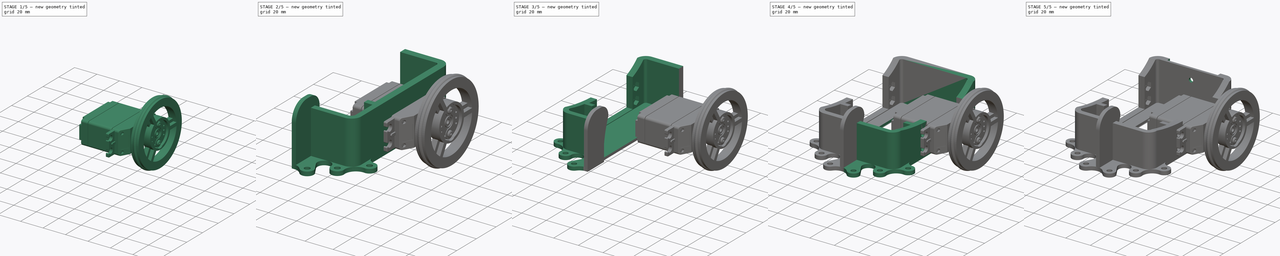
[diagram: build sequence overview — one tinted view per stage of 5, left to right]
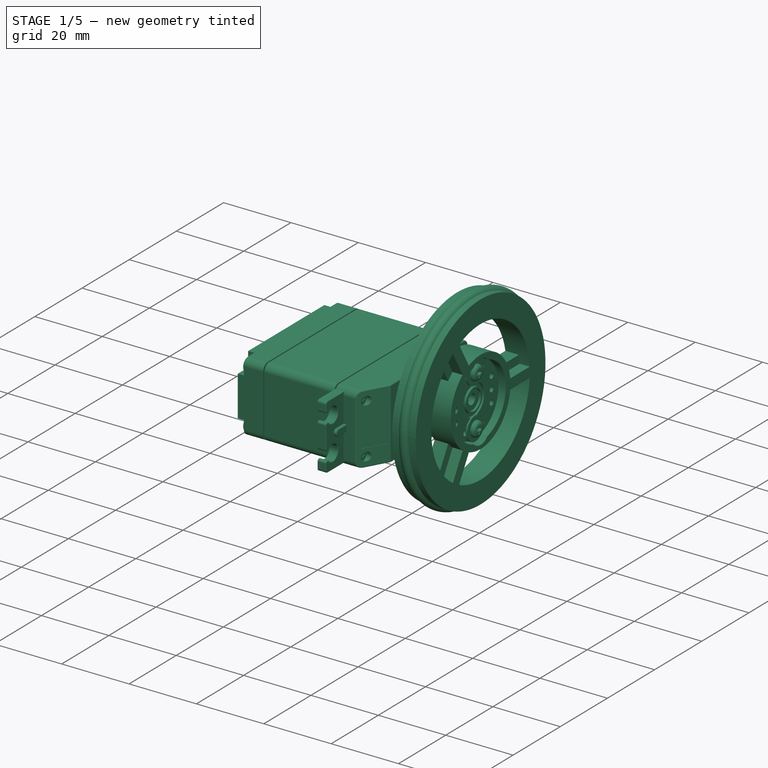
[diagram: stage 1 of 5 — iso view after this stage's code; geometry added in this stage tinted green]
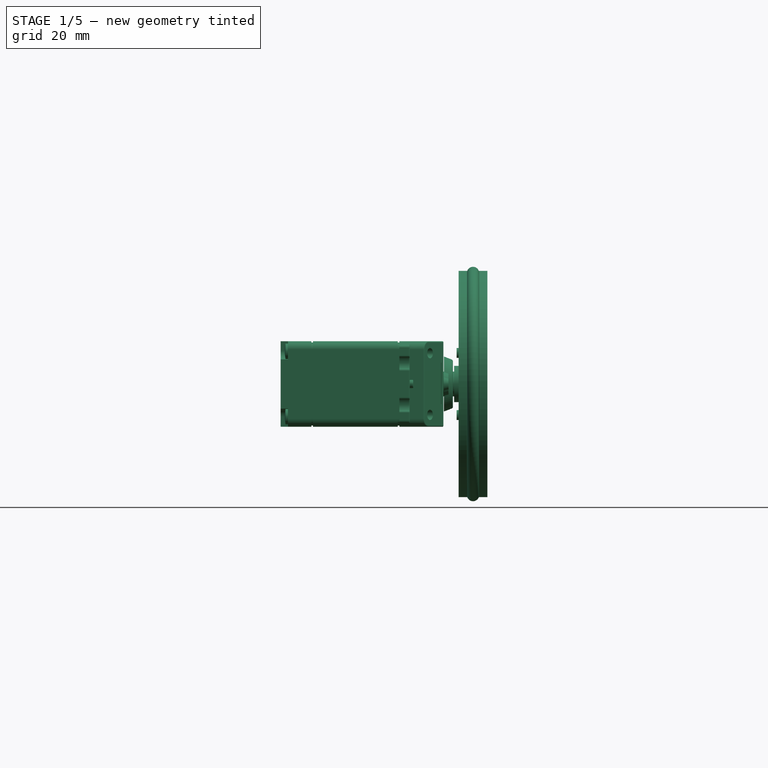
[diagram: stage 1 of 5 — front view after this stage's code; geometry added in this stage tinted green]
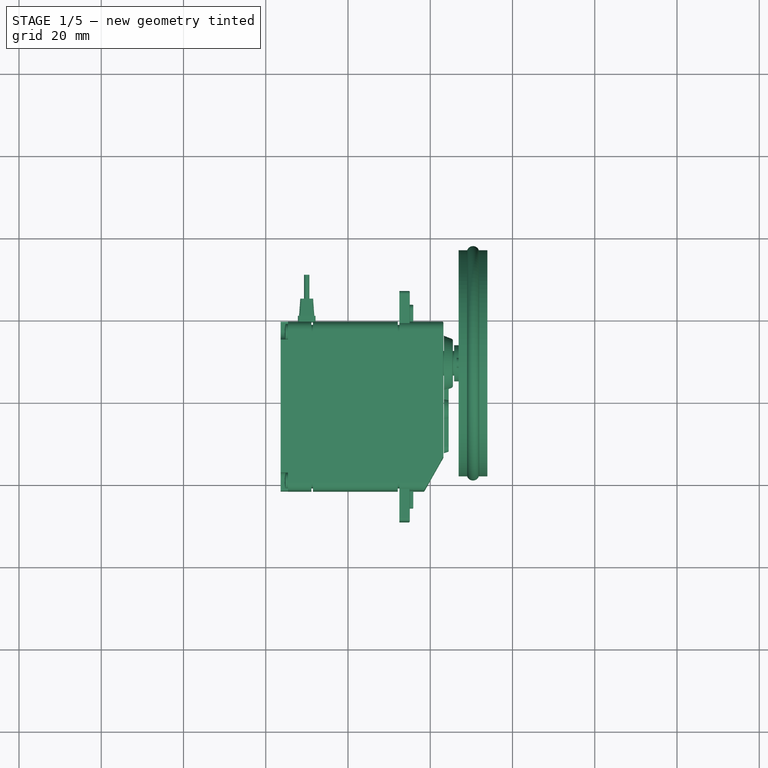
[diagram: stage 1 of 5 — top view after this stage's code; geometry added in this stage tinted green]
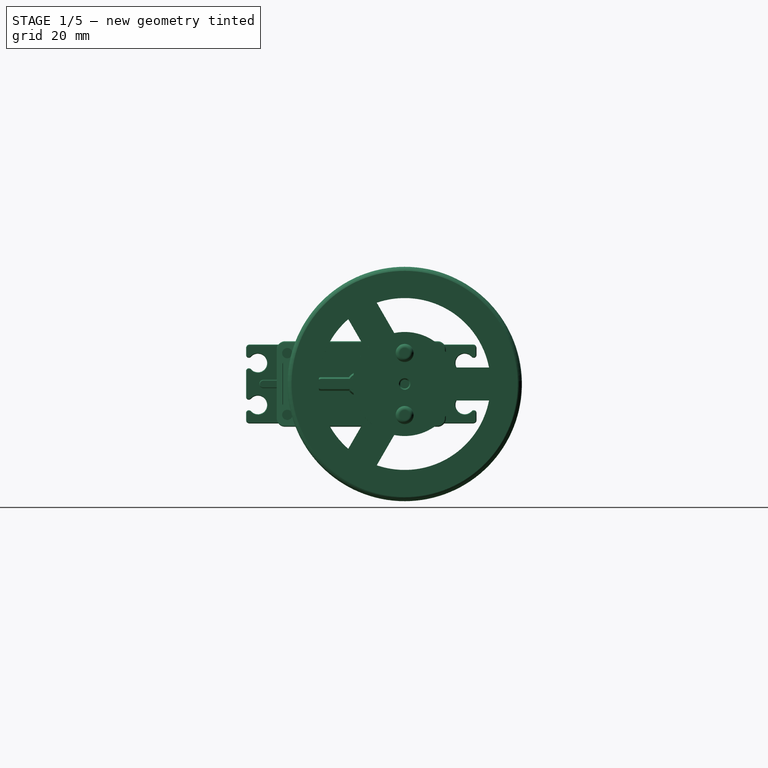
[diagram: stage 1 of 5 — right view after this stage's code; geometry added in this stage tinted green]
FCSTD DOCUMENT  (FreeCAD 0.15R4544 (Git))
Label: test
License: CC-BY 3.0
LicenseURL: http://creativecommons.org/licenses/by/3.0/
objects: Sketcher::SketchObject×13, PartDesign::Pocket×10, Part::Feature×5, PartDesign::Pad×3, Part::Compound×3, Part::MultiFuse×2, Part::Fillet×1, Part::Mirroring×1, Part::Torus×1
note: 52 computed .brp shape members not serialized (recipe doc carries the construction recipe); baked Part::Feature solids carry a one-line shape summary decoded from their .brp

FEATURE [Part::Feature] Chamfer  label="screw1"
  Placement = pos=(7.55,0,1.5) rot=(0,0,1;0rad)
  shape: bbox 7 x 7 x 7.14 mm, 33 faces (baked)
FEATURE [Part::Feature] Pocket009002  label="small-rounded-horn"
  Placement = pos=(0,0,-0.5) rot=(0,0,1;0rad)
  shape: bbox 21 x 21 x 6.2 mm, 28 faces (baked)
FEATURE [Part::Torus] Torus  label="o-ring"
  Angle1 = -180
  Angle2 = 180
  Angle3 = 360
  Radius1 = 27
  Radius2 = 1.5
FEATURE [Part::Feature] Mirrored  label="Renacuajo-original-wheel-screws-final"
  Placement = pos=(0,0,0) rot=(1,0,0;1.5708rad)
  shape: bbox 55 x 55 x 7 mm, 44 faces (baked)
FEATURE [Part::Feature] Chamfer001  label="screw2"
  Placement = pos=(-7.55,0,1.5) rot=(0,0,1;0rad)
  shape: bbox 7 x 7 x 7.14 mm, 33 faces (baked)
FEATURE [Part::Compound] Compound  label="Right-wheel"
  Links = -> [Mirrored,Torus,Chamfer001,Pocket009002,Chamfer]
  Placement = pos=(50.4,29.2,-12.4) rot=(0,1,0;1.5708rad)
FEATURE [Part::Compound] Compound001  label="Servo-SM-S4303R-right"
  Placement = pos=(3.6,18.65,-12.4) rot=(0.57735,0.57735,0.57735;2.0944rad)
FEATURE [Part::Compound] Compound002  label="Wheel_plus_servo"
  Links = -> [Compound,Compound001]
  Placement = pos=(0,0,24.8) rot=(0,0,1;0rad)
FEATURE [Part::Feature] Pocket009003  label="renacuajo-chassis-final"
  shape: bbox 83.6 x 117.6 x 41.4 mm, 171 faces (baked)
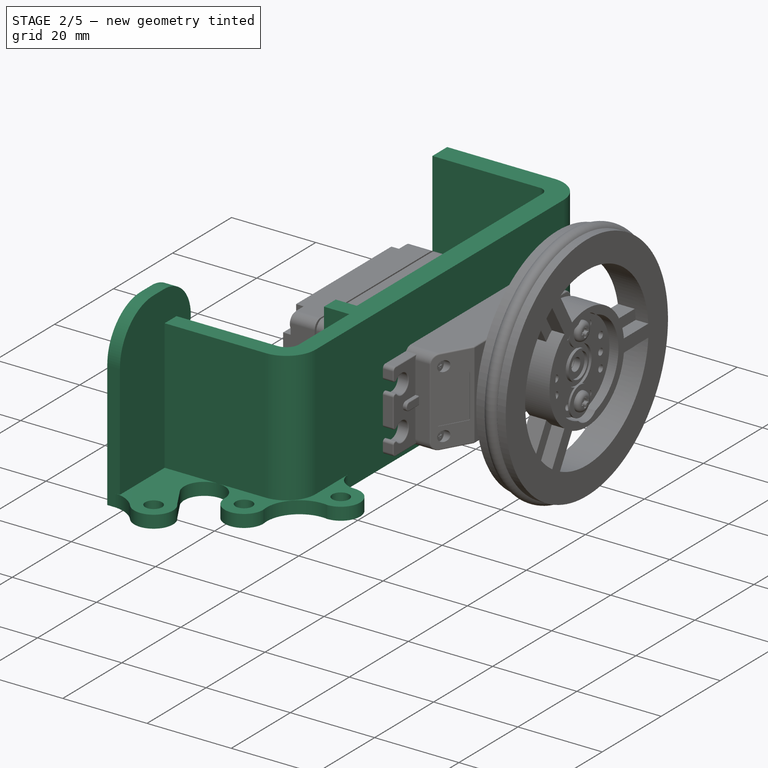
[diagram: stage 2 of 5 — iso view after this stage's code; geometry added in this stage tinted green]
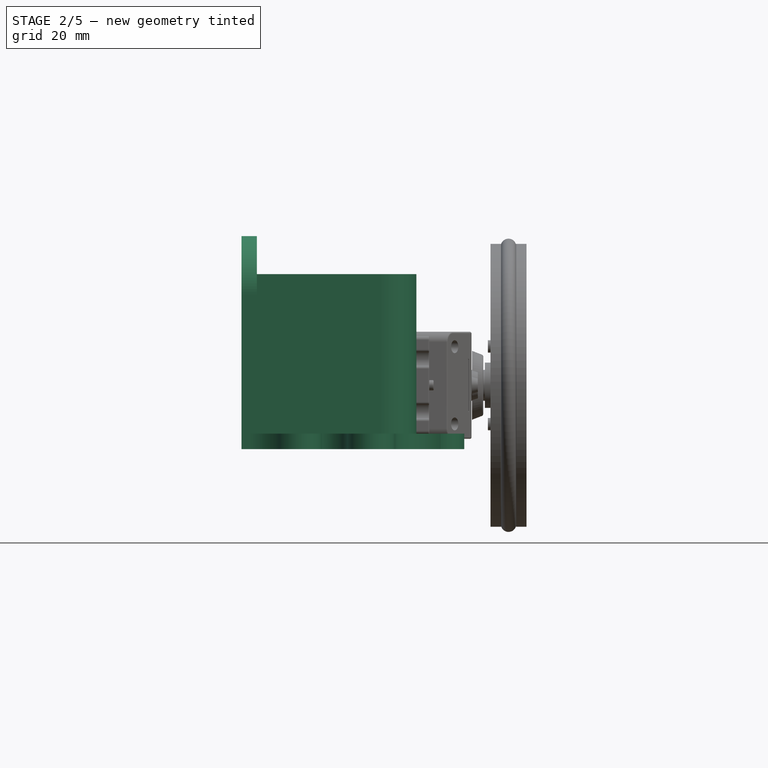
[diagram: stage 2 of 5 — front view after this stage's code; geometry added in this stage tinted green]
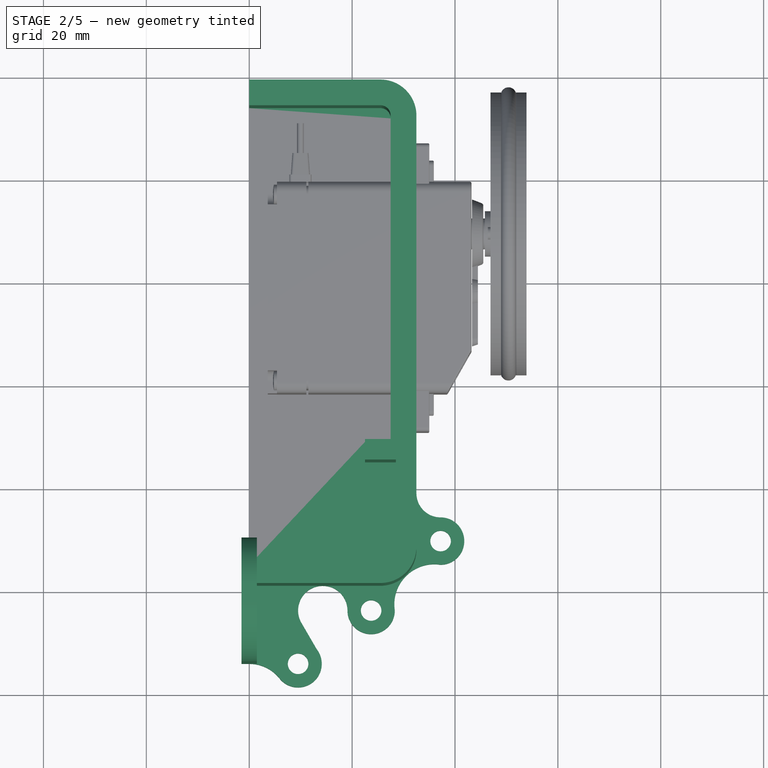
[diagram: stage 2 of 5 — top view after this stage's code; geometry added in this stage tinted green]
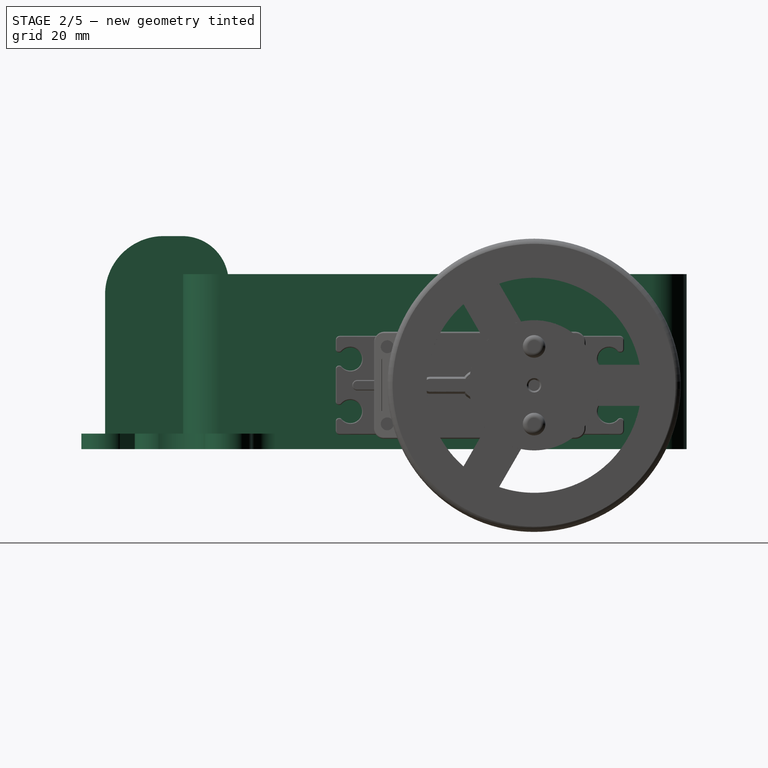
[diagram: stage 2 of 5 — right view after this stage's code; geometry added in this stage tinted green]
FEATURE [Sketcher::SketchObject] Sketch  label="half-base-sketch"
  sketch-geometry (24):
    g0: Circle CenterX=9.5 CenterY=-54.2 CenterZ=0 NormalX=0 NormalY=0 NormalZ=1 Radius=2
    g1: ArcOfCircle CenterX=9.5 CenterY=-54.2 CenterZ=0 NormalX=0 NormalY=0 NormalZ=1 Radius=4.6 StartAngle=3.81052 EndAngle=6.95211
    g2: LineSegment [constr] StartX=0 StartY=-61.7098 StartZ=0 EndX=13.1087 EndY=-51.3473 EndZ=0
    g3: ArcOfCircle CenterX=0 CenterY=-61.7098 CenterZ=0 NormalX=0 NormalY=0 NormalZ=1 Radius=7.50978 StartAngle=0.668923 EndAngle=1.5708
    g4: LineSegment [constr] StartX=0 StartY=-54.2 StartZ=0 EndX=9.5 EndY=-54.2 EndZ=0
    g5: LineSegment [constr] StartX=0 StartY=-43.84 StartZ=0 EndX=23.7 EndY=-43.84 EndZ=0
    g6: Circle CenterX=23.7 CenterY=-43.84 CenterZ=0 NormalX=0 NormalY=0 NormalZ=1 Radius=2
    g7: ArcOfCircle CenterX=23.7 CenterY=-43.84 CenterZ=0 NormalX=0 NormalY=0 NormalZ=1 Radius=4.6 StartAngle=3.14159 EndAngle=6.28319
    g8: ArcOfCircle CenterX=14.3 CenterY=-43.84 CenterZ=0 NormalX=0 NormalY=0 NormalZ=1 Radius=4.8 StartAngle=0 EndAngle=3.66766
    g9: LineSegment StartX=10.149 StartY=-46.2503 StartZ=0 EndX=13.1087 EndY=-51.3473 EndZ=0
    g10: Circle CenterX=37.2 CenterY=-30.34 CenterZ=0 NormalX=0 NormalY=0 NormalZ=1 Radius=2
    g11: LineSegment [constr] StartX=23.7 StartY=-43.84 StartZ=0 EndX=37.2 EndY=-43.84 EndZ=0
    g12: LineSegment [constr] StartX=37.2 StartY=-43.84 StartZ=0 EndX=37.2 EndY=-30.34 EndZ=0
    g13: LineSegment [constr] StartX=30.4896 StartY=-37.1296 StartZ=0 EndX=37.2 EndY=-43.84 EndZ=0
    g14: ArcOfCircle CenterX=36 CenterY=-42.64 CenterZ=0 NormalX=0 NormalY=0 NormalZ=1 Radius=7.79295 StartAngle=1.4162 EndAngle=3.29619
    g15: ArcOfCircle CenterX=37.2 CenterY=-30.34 CenterZ=0 NormalX=0 NormalY=0 NormalZ=1 Radius=4.6 StartAngle=4.71239 EndAngle=7.85398
    g16: ArcOfCircle CenterX=37.2 CenterY=-21.04 CenterZ=0 NormalX=0 NormalY=0 NormalZ=1 Radius=4.7 StartAngle=3.14159 EndAngle=4.71239
    g17: LineSegment [constr] StartX=32.5 StartY=-21.04 StartZ=0 EndX=37.2 EndY=-21.04 EndZ=0
    g18: ArcOfCircle CenterX=25.5 CenterY=51.843 CenterZ=0 NormalX=0 NormalY=0 NormalZ=1 Radius=7 StartAngle=0 EndAngle=1.5708
    g19: LineSegment [constr] StartX=25.5 StartY=51.843 StartZ=0 EndX=32.5 EndY=51.843 EndZ=0
    g20: LineSegment [constr] StartX=25.5 StartY=51.843 StartZ=0 EndX=25.5 EndY=58.843 EndZ=0
    g21: LineSegment StartX=32.5 StartY=51.843 StartZ=0 EndX=32.5 EndY=-21.04 EndZ=0
    g22: LineSegment StartX=0 StartY=58.843 StartZ=0 EndX=25.5 EndY=58.843 EndZ=0
    g23: LineSegment StartX=0 StartY=58.843 StartZ=0 EndX=0 EndY=-54.2 EndZ=0
  constraints (74):
    c: Radius(g0) = 2
    c: DistanceY(g-1,g0) = -54.2
    c: DistanceX(g-1,g0) = 9.5
    c: Coincident(g1,g0)
    c: Coincident(g2,g1)
    c: PointOnObject(g0,g2)
    c: Radius(g1) = 4.6
    c: PointOnObject(g2,g-2)
    c: PointOnObject(g1,g2)
    c: Coincident(g3,g1)
    c: Coincident(g3,g2)
    c: Coincident(g4,g0)
    c: Horizontal(g4)
    c: PointOnObject(g4,g-2)
    c: Coincident(g3,g4)
    c: Horizontal(g5)
    c: PointOnObject(g5,g-2)
    c: Radius(g6) = 2
    c: PointOnObject(g6,g5)
    c: Coincident(g5,g6)
    c: DistanceY(g-1,g5) = -43.84
    c: DistanceX(g5,g5) = 23.7
    c: Radius(g7) = 4.6
    c: PointOnObject(g7,g5)
    c: PointOnObject(g7,g5)
    c: Radius(g8) = 4.8
    c: PointOnObject(g8,g5)
    c: Coincident(g8,g7)
    c: Coincident(g9,g1)
    c: Coincident(g9,g8)
    c: Coincident(g7,g5)
    c: Tangent(g9,g8)
    c: Radius(g10) = 2
    c: DistanceX(g5,g10) = 13.5
    c: DistanceY(g5,g10) = 13.5
    c: Coincident(g12,g11)
    c: Horizontal(g11)
    c: Vertical(g12)
    c: Coincident(g11,g5)
    c: Coincident(g12,g10)
    c: Coincident(g13,g11)
    c: Angle(g13,g11) = 0.785398
    c: Coincident(g14,g7)
    c: PointOnObject(g14,g13)
    c: PointOnObject(g14,g12)
    c: DistanceY(g11,g14) = 1.2
    c: PointOnObject(g13,g14)
    c: Coincident(g15,g14)
    c: Coincident(g15,g10)
    c: PointOnObject(g15,g12)
    c: Coincident(g16,g15)
    c: PointOnObject(g16,g12)
    c: Coincident(g17,g16)
    c: Horizontal(g17)
    c: Coincident(g17,g16)
    c: DistanceX(g17) = 4.7
    c: DistanceY(g-1,g18) = 51.843
    c: DistanceX(g-1,g18) = 25.5
    c: Radius(g18) = 7
    c: Horizontal(g19)
    c: Coincident(g19,g18)
    c: Coincident(g19,g18)
    c: Vertical(g20)
    c: Coincident(g20,g18)
    c: Coincident(g20,g18)
    c: Vertical(g21)
    c: Coincident(g21,g16)
    c: Coincident(g21,g18)
    c: Horizontal(g22)
    c: Coincident(g22,g18)
    c: PointOnObject(g22,g-2)
    c: Vertical(g23)
    c: Coincident(g23,g22)
    c: Coincident(g23,g3)
FEATURE [PartDesign::Pad] Pad  label="half-base"
  Length = 3
  Length2 = 100
  Sketch = -> Sketch
  Type = 0
FEATURE [Sketcher::SketchObject] Sketch001  label="body1-sketch"
  ExternalGeometry = -> [Pad]
  Placement = pos=(0,0,3) rot=(0,0,1;0rad)
  Support = -> Pad [Face17]
  sketch-geometry (8):
    g0: LineSegment StartX=0 StartY=58.843 StartZ=0 EndX=25.5 EndY=58.843 EndZ=0
    g1: LineSegment [constr] StartX=25.5 StartY=58.843 StartZ=0 EndX=25.5 EndY=51.843 EndZ=0
    g2: LineSegment [constr] StartX=25.5 StartY=51.843 StartZ=0 EndX=32.5 EndY=51.843 EndZ=0
    g3: ArcOfCircle CenterX=25.5 CenterY=51.843 CenterZ=0 NormalX=0 NormalY=0 NormalZ=1 Radius=7 StartAngle=0 EndAngle=1.5708
    g4: LineSegment StartX=32.5 StartY=51.843 StartZ=0 EndX=32.5 EndY=-32.04 EndZ=0
    g5: LineSegment StartX=0 StartY=-39.04 StartZ=0 EndX=25.5 EndY=-39.04 EndZ=0
    g6: ArcOfCircle CenterX=25.5 CenterY=-32.04 CenterZ=0 NormalX=0 NormalY=0 NormalZ=1 Radius=7 StartAngle=4.71239 EndAngle=6.28319
    g7: LineSegment StartX=0 StartY=58.843 StartZ=0 EndX=0 EndY=-39.04 EndZ=0
  constraints (22):
    c: Horizontal(g0)
    c: Coincident(g0,g-3)
    c: Coincident(g2,g1)
    c: Vertical(g1)
    c: Horizontal(g2)
    c: Coincident(g3,g1)
    c: Coincident(g3,g2)
    c: Coincident(g1,g3)
    c: Coincident(g1,g-3)
    c: Coincident(g2,g-4)
    c: Coincident(g0,g1)
    c: Vertical(g4)
    c: Horizontal(g5)
    c: PointOnObject(g5,g-2)
    c: Tangent(g-5,g5)
    c: Coincident(g4,g2)
    c: Tangent(g4,g6)
    c: Tangent(g5,g6)
    c: Vertical(g7)
    c: Coincident(g7,g5)
    c: Coincident(g7,g0)
    c: Radius(g6) = 7
FEATURE [PartDesign::Pad] Pad001  label="body1"
  Length = 31
  Length2 = 100
  Sketch = -> Sketch001
  Type = 0
FEATURE [Sketcher::SketchObject] Sketch003  label="body2-sketch"
  ExternalGeometry = -> [Pad001]
  Placement = pos=(0,0,34) rot=(0,0,1;0rad)
  Support = -> Pad001 [Face16]
  sketch-geometry (10):
    g0: LineSegment StartX=0 StartY=53.843 StartZ=0 EndX=25.5 EndY=53.843 EndZ=0
    g1: LineSegment StartX=27.5 StartY=51.843 StartZ=0 EndX=27.5 EndY=-11.04 EndZ=0
    g2: LineSegment StartX=0 StartY=-35.04 StartZ=0 EndX=25.5 EndY=-35.04 EndZ=0
    g3: LineSegment StartX=27.5 StartY=-11.04 StartZ=0 EndX=22.5 EndY=-11.04 EndZ=0
    g4: LineSegment StartX=22.5 StartY=-11.04 StartZ=0 EndX=22.5 EndY=-15.04 EndZ=0
    g5: LineSegment StartX=22.5 StartY=-15.04 StartZ=0 EndX=28.5 EndY=-15.04 EndZ=0
    g6: LineSegment StartX=28.5 StartY=-15.04 StartZ=0 EndX=28.5 EndY=-32.04 EndZ=0
    g7: LineSegment StartX=0 StartY=53.843 StartZ=0 EndX=0 EndY=-35.04 EndZ=0
    g8: ArcOfCircle CenterX=25.5 CenterY=-32.04 CenterZ=0 NormalX=0 NormalY=0 NormalZ=1 Radius=3 StartAngle=4.71239 EndAngle=6.28319
    g9: ArcOfCircle CenterX=25.5 CenterY=51.843 CenterZ=0 NormalX=0 NormalY=0 NormalZ=1 Radius=2 StartAngle=0 EndAngle=1.5708
  constraints (29):
    c: Horizontal(g0)
    c: PointOnObject(g0,g-2)
    c: DistanceY(g0,g-3) = 5
    c: Vertical(g1)
    c: Horizontal(g2)
    c: PointOnObject(g2,g-2)
    c: DistanceY(g-5,g2) = 4
    c: Coincident(g3,g4)
    c: Coincident(g4,g5)
    c: Coincident(g5,g6)
    c: Horizontal(g3)
    c: Horizontal(g5)
    c: Vertical(g4)
    c: Vertical(g6)
    c: Coincident(g3,g1)
    c: Vertical(g7)
    c: Coincident(g0,g7)
    c: Coincident(g7,g2)
    c: DistanceY(g4) = -4
    c: DistanceX(g3) = -5
    c: Tangent(g2,g8)
    c: Tangent(g6,g8)
    c: Radius(g8) = 3
    c: DistanceX(g6,g-4) = 4
    c: DistanceY(g2,g5) = 20
    c: Tangent(g0,g9)
    c: Tangent(g1,g9)
    c: Radius(g9) = 2
    c: DistanceX(g1,g-4) = 5
FEATURE [PartDesign::Pocket] Pocket  label="body2"
  Length = 32
  Sketch = -> Sketch003
  Type = 0
FEATURE [Sketcher::SketchObject] Sketch007  label="caster-wheel-sketch"
  Placement = pos=(0,0,0) rot=(0.57735,0.57735,0.57735;2.0944rad)
  sketch-geometry (9):
    g0: LineSegment StartX=-54.2 StartY=0 StartZ=0 EndX=-54.2 EndY=30 EndZ=0
    g1: LineSegment StartX=-42.8 StartY=41.4 StartZ=0 EndX=-39.2 EndY=41.4 EndZ=0
    g2: ArcOfCircle CenterX=-42.8 CenterY=30 CenterZ=0 NormalX=0 NormalY=0 NormalZ=1 Radius=11.4 StartAngle=1.5708 EndAngle=3.14159
    g3: LineSegment [constr] StartX=-54.2 StartY=30 StartZ=0 EndX=-42.8 EndY=30 EndZ=0
    g4: LineSegment [constr] StartX=-30.2 StartY=31.7308 StartZ=0 EndX=-35.2 EndY=13 EndZ=0
    g5: LineSegment StartX=-54.2 StartY=0 StartZ=0 EndX=-35.2 EndY=0 EndZ=0
    g6: LineSegment StartX=-35.2 StartY=0 StartZ=0 EndX=-35.2 EndY=13 EndZ=0
    g7: ArcOfCircle CenterX=36.2309 CenterY=3.96494 CenterZ=0 NormalX=0 NormalY=0 NormalZ=1 Radius=72 StartAngle=2.7457 EndAngle=3.01577
    g8: ArcOfCircle CenterX=-39.2 CenterY=32.3769 CenterZ=0 NormalX=0 NormalY=0 NormalZ=1 Radius=9.02313 StartAngle=6.21152 EndAngle=7.85398
  constraints (27):
    c: Vertical(g0)
    c: PointOnObject(g0,g-1)
    c: DistanceY(g0) = 30
    c: Horizontal(g1)
    c: DistanceX(g1) = 3.6
    c: DistanceY(g-1,g1) = 41.4
    c: Coincident(g2,g1)
    c: Coincident(g2,g0)
    c: Coincident(g3,g0)
    c: Coincident(g3,g2)
    c: Horizontal(g3)
    c: Tangent(g1,g2)
    c: DistanceX(g-1,g0) = -54.2
    c: Horizontal(g5)
    c: Coincident(g5,g0)
    c: DistanceX(g0,g5) = 19
    c: Vertical(g6)
    c: Coincident(g6,g5)
    c: Coincident(g6,g4)
    c: DistanceY(g6) = 13
    c: DistanceX(g0,g4) = 24
    c: Coincident(g7,g4)
    c: Coincident(g4,g7)
    c: Radius(g7) = 72
    c: Coincident(g8,g1)
    c: Coincident(g8,g4)
    c: Tangent(g8,g1)
FEATURE [PartDesign::Pad] Pad002  label="caster-wheel"
  Length = 3
  Length2 = 100
  Midplane = true
  Placement = pos=(0,0,0) rot=(0.57735,0.57735,0.57735;2.0944rad)
  Sketch = -> Sketch007
  Type = 0
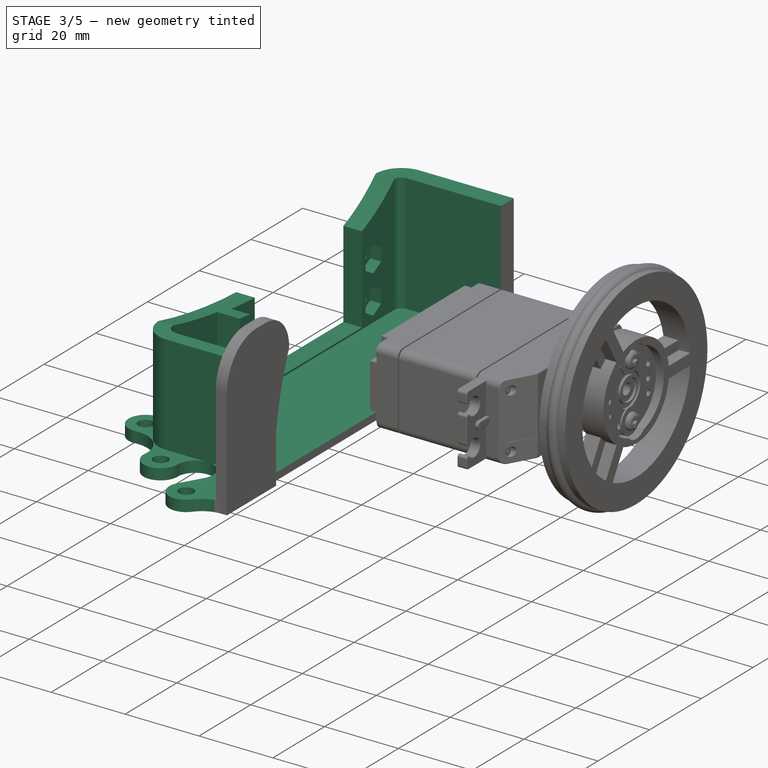
[diagram: stage 3 of 5 — iso view after this stage's code; geometry added in this stage tinted green]
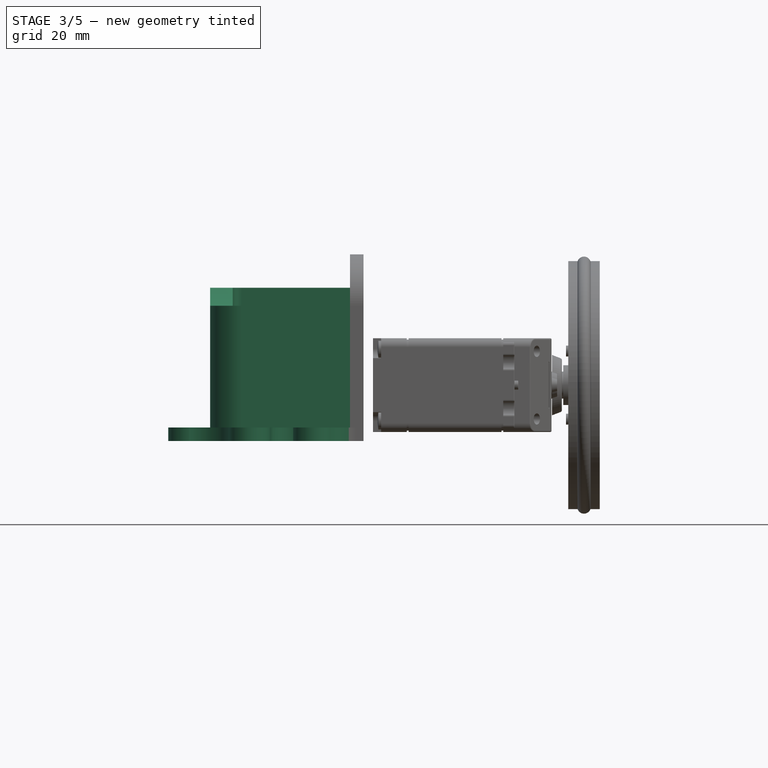
[diagram: stage 3 of 5 — front view after this stage's code; geometry added in this stage tinted green]
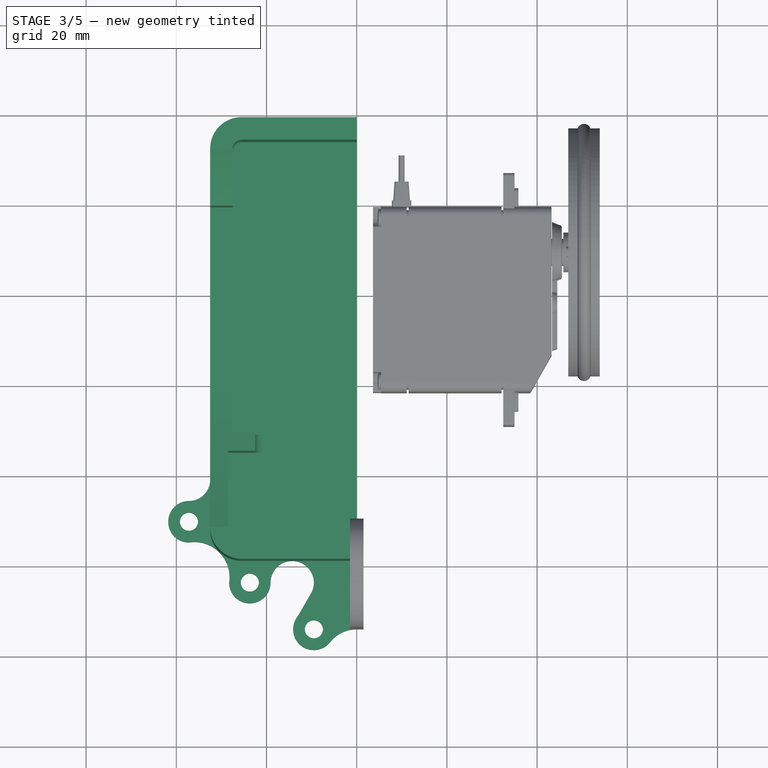
[diagram: stage 3 of 5 — top view after this stage's code; geometry added in this stage tinted green]
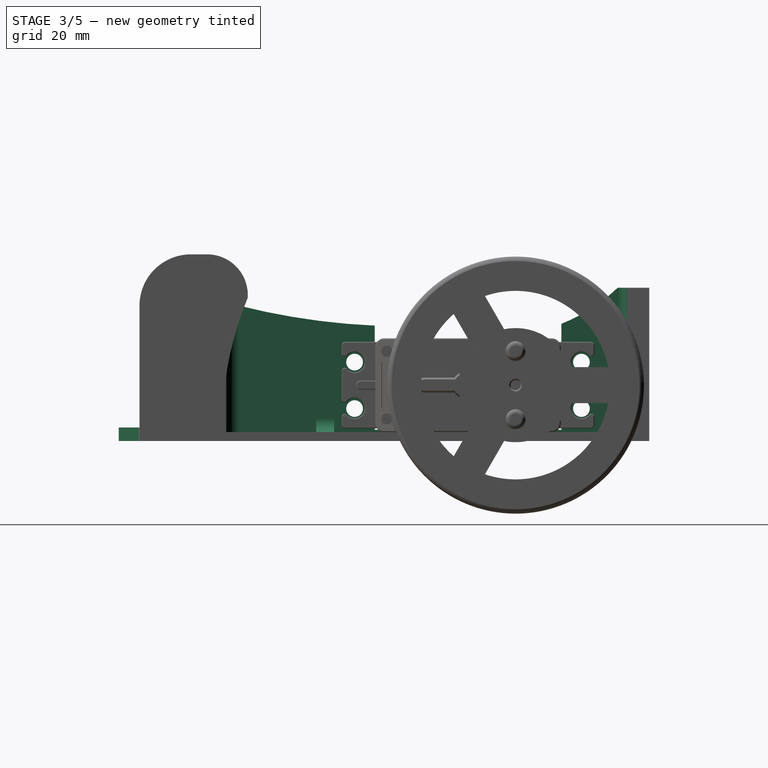
[diagram: stage 3 of 5 — right view after this stage's code; geometry added in this stage tinted green]
FEATURE [Sketcher::SketchObject] Sketch004  label="body3-sketch"
  ExternalGeometry = -> [Pocket]
  Placement = pos=(32.5,0,0) rot=(0.57735,0.57735,0.57735;2.0944rad)
  Support = -> Pocket [Face11]
  sketch-geometry (10):
    g0: LineSegment StartX=-39.04 StartY=30 StartZ=0 EndX=-32.04 EndY=30 EndZ=0
    g1: LineSegment StartX=-2.04 StartY=25.6 StartZ=0 EndX=-2.04 EndY=2.5 EndZ=0
    g2: LineSegment StartX=-2.04 StartY=2.5 StartZ=0 EndX=39.36 EndY=2.5 EndZ=0
    g3: LineSegment StartX=39.36 StartY=2.5 StartZ=0 EndX=39.36 EndY=26 EndZ=0
    g4: LineSegment [constr] StartX=51.843 StartY=34 StartZ=0 EndX=51.843 EndY=2 EndZ=0
    g5: ArcOfCircle CenterX=24.3925 CenterY=63.0941 CenterZ=0 NormalX=0 NormalY=0 NormalZ=1 Radius=40 StartAngle=5.09591 EndAngle=5.46873
    g6: ArcOfCircle CenterX=4.61567 CenterY=175.452 CenterZ=0 NormalX=0 NormalY=0 NormalZ=1 Radius=150 StartAngle=4.46552 EndAngle=4.668
    g7: LineSegment StartX=-39.04 StartY=35 StartZ=0 EndX=51.843 EndY=35 EndZ=0
    g8: LineSegment StartX=51.843 StartY=35 StartZ=0 EndX=51.843 EndY=34 EndZ=0
    g9: LineSegment StartX=-39.04 StartY=30 StartZ=0 EndX=-39.04 EndY=35 EndZ=0
  constraints (31):
    c: Horizontal(g0)
    c: PointOnObject(g0,g-3)
    c: DistanceY(g0,g-3) = -27
    c: DistanceX(g0) = 7
    c: Vertical(g1)
    c: DistanceX(g-4,g1) = 9
    c: DistanceY(g1,g-5) = -23.6
    c: DistanceY(g1,g-5) = -0.5
    c: Horizontal(g2)
    c: Coincident(g2,g1)
    c: DistanceX(g2) = 41.4
    c: Vertical(g3)
    c: Coincident(g3,g2)
    c: DistanceY(g3,g-5) = -24
    c: Vertical(g4)
    c: Coincident(g4,g-5)
    c: DistanceY(g4) = -32
    c: Coincident(g5,g3)
    c: Coincident(g5,g4)
    c: Radius(g5) = 40
    c: Coincident(g6,g0)
    c: Coincident(g6,g1)
    c: Radius(g6) = 150
    c: Vertical(g8)
    c: Coincident(g8,g4)
    c: DistanceY(g8) = -1
    c: Coincident(g7,g8)
    c: Horizontal(g7)
    c: Vertical(g9)
    c: Coincident(g0,g9)
    c: Coincident(g9,g7)
FEATURE [PartDesign::Pocket] Pocket001  label="body3"
  Length = 5
  Sketch = -> Sketch004
  Type = 1
FEATURE [Sketcher::SketchObject] Sketch005  label="servo-drills-sketch"
  Placement = pos=(32.5,0,0) rot=(0.57735,0.57735,0.57735;2.0944rad)
  Support = -> Pocket001 [Face11]
  sketch-geometry (8):
    g0: Circle CenterX=-6.5 CenterY=17.5 CenterZ=0 NormalX=0 NormalY=0 NormalZ=1 Radius=1.85
    g1: LineSegment [constr] StartX=-6.5 StartY=17.5 StartZ=0 EndX=-6.5 EndY=7.2 EndZ=0
    g2: Circle CenterX=-6.5 CenterY=7.2 CenterZ=0 NormalX=0 NormalY=0 NormalZ=1 Radius=1.85
    g3: LineSegment [constr] StartX=-6.5 StartY=17.5 StartZ=0 EndX=43.8 EndY=17.5 EndZ=0
    g4: Circle CenterX=43.8 CenterY=17.5 CenterZ=0 NormalX=0 NormalY=0 NormalZ=1 Radius=1.85
    g5: LineSegment [constr] StartX=-6.5 StartY=7.2 StartZ=0 EndX=43.8 EndY=7.2 EndZ=0
    g6: LineSegment [constr] StartX=43.8 StartY=17.5 StartZ=0 EndX=43.8 EndY=7.2 EndZ=0
    g7: Circle CenterX=43.8 CenterY=7.2 CenterZ=0 NormalX=0 NormalY=0 NormalZ=1 Radius=1.85
  constraints (20):
    c: Radius(g0) = 1.85
    c: Coincident(g1,g0)
    c: DistanceY(g1) = -10.3
    c: Equal(g2,g0)
    c: Coincident(g2,g1)
    c: Vertical(g1)
    c: Coincident(g3,g0)
    c: Horizontal(g3)
    c: DistanceX(g3) = 50.3
    c: Equal(g4,g0)
    c: Coincident(g4,g3)
    c: Coincident(g5,g1)
    c: Horizontal(g5)
    c: Vertical(g6)
    c: Coincident(g6,g3)
    c: Coincident(g6,g5)
    c: Coincident(g7,g5)
    c: Equal(g7,g4)
    c: DistanceY(g-1,g1) = 7.2
    c: DistanceX(g-1,g1) = -6.5
FEATURE [PartDesign::Pocket] Pocket002  label="servo-drills"
  Length = 5
  Sketch = -> Sketch005
  Type = 1
FEATURE [Sketcher::SketchObject] Sketch006  label="servo-nut-sketch"
  Placement = pos=(27.5,0,0) rot=(0.57735,-0.57735,-0.57735;2.0944rad)
  Support = -> Pocket002 [Face37]
  sketch-geometry (32):
    g0: LineSegment [constr] StartX=-43.8 StartY=17.5 StartZ=0 EndX=6.5 EndY=17.5 EndZ=0
    g1: LineSegment [constr] StartX=6.5 StartY=17.5 StartZ=0 EndX=6.5 EndY=7.2 EndZ=0
    g2: LineSegment [constr] StartX=6.5 StartY=7.2 StartZ=0 EndX=-43.8 EndY=7.2 EndZ=0
    g3: LineSegment [constr] StartX=-43.8 StartY=7.2 StartZ=0 EndX=-43.8 EndY=17.5 EndZ=0
    g4: LineSegment [constr] StartX=-43.8 StartY=21 StartZ=0 EndX=-43.8 EndY=17.5 EndZ=0
    g5: LineSegment [constr] StartX=-46.8311 StartY=19.25 StartZ=0 EndX=-43.8 EndY=17.5 EndZ=0
    g6: LineSegment StartX=-43.8 StartY=21 StartZ=0 EndX=-46.8311 EndY=19.25 EndZ=0
    g7: LineSegment StartX=-46.8311 StartY=19.25 StartZ=0 EndX=-46.8311 EndY=15.75 EndZ=0
    g8: LineSegment StartX=-46.8311 StartY=15.75 StartZ=0 EndX=-43.8 EndY=14 EndZ=0
    g9: LineSegment StartX=-43.8 StartY=21 StartZ=0 EndX=-40.7689 EndY=19.25 EndZ=0
    g10: LineSegment StartX=-43.8 StartY=14 StartZ=0 EndX=-40.7689 EndY=15.75 EndZ=0
    g11: LineSegment StartX=-40.7689 StartY=19.25 StartZ=0 EndX=-40.7689 EndY=15.75 EndZ=0
    g12: LineSegment [constr] StartX=-43.8 StartY=12.35 StartZ=0 EndX=6.5 EndY=12.35 EndZ=0
    g13: LineSegment [constr] StartX=-18.65 StartY=17.5 StartZ=0 EndX=-18.65 EndY=7.2 EndZ=0
    g14: LineSegment StartX=-43.8 StartY=10.7 StartZ=0 EndX=-46.8311 EndY=8.95 EndZ=0
    g15: LineSegment StartX=-43.8 StartY=10.7 StartZ=0 EndX=-40.7689 EndY=8.95 EndZ=0
    g16: LineSegment StartX=-46.8311 StartY=5.45 StartZ=0 EndX=-43.8 EndY=3.7 EndZ=0
    g17: LineSegment StartX=-43.8 StartY=3.7 StartZ=0 EndX=-40.7689 EndY=5.45 EndZ=0
    g18: LineSegment StartX=-46.8311 StartY=8.95 StartZ=0 EndX=-46.8311 EndY=5.45 EndZ=0
    g19: LineSegment StartX=-40.7689 StartY=8.95 StartZ=0 EndX=-40.7689 EndY=5.45 EndZ=0
    g20: LineSegment StartX=3.46891 StartY=19.25 StartZ=0 EndX=6.5 EndY=21 EndZ=0
    g21: LineSegment StartX=6.5 StartY=21 StartZ=0 EndX=9.53109 EndY=19.25 EndZ=0
    g22: LineSegment StartX=9.53109 StartY=19.25 StartZ=0 EndX=9.53109 EndY=15.75 EndZ=0
    g23: LineSegment StartX=9.53109 StartY=15.75 StartZ=0 EndX=6.5 EndY=14 EndZ=0
    g24: LineSegment StartX=6.5 StartY=14 StartZ=0 EndX=3.46891 EndY=15.75 EndZ=0
    g25: LineSegment StartX=3.46891 StartY=15.75 StartZ=0 EndX=3.46891 EndY=19.25 EndZ=0
    g26: LineSegment StartX=3.46891 StartY=8.95 StartZ=0 EndX=6.5 EndY=10.7 EndZ=0
    g27: LineSegment StartX=6.5 StartY=10.7 StartZ=0 EndX=9.53109 EndY=8.95 EndZ=0
    g28: LineSegment StartX=3.46891 StartY=5.45 StartZ=0 EndX=6.5 EndY=3.7 EndZ=0
    g29: LineSegment StartX=6.5 StartY=3.7 StartZ=0 EndX=9.53109 EndY=5.45 EndZ=0
    g30: LineSegment StartX=3.46891 StartY=8.95 StartZ=0 EndX=3.46891 EndY=5.45 EndZ=0
    g31: LineSegment StartX=9.53109 StartY=8.95 StartZ=0 EndX=9.53109 EndY=5.45 EndZ=0
  constraints (70):
    c: Coincident(g0,g1)
    c: Coincident(g1,g2)
    c: Coincident(g2,g3)
    c: Coincident(g3,g0)
    c: Horizontal(g2)
    c: Vertical(g1)
    c: Vertical(g3)
    c: Vertical(g4)
    c: Coincident(g4,g0)
    c: Coincident(g5,g0)
    c: Angle(g4,g5) = 1.0472
    c: Equal(g5,g4)
    c: Coincident(g6,g4)
    c: Coincident(g6,g5)
    c: DistanceY(g4) = -3.5
    c: Vertical(g7)
    c: Coincident(g7,g5)
    c: Symmetric(g5,g7,g0)
    c: Coincident(g8,g7)
    c: Symmetric(g8,g4,g0)
    c: Coincident(g9,g4)
    c: Symmetric(g9,g5,g4)
    c: Coincident(g10,g8)
    c: Coincident(g10,g11)
    c: Symmetric(g10,g7,g3)
    c: Coincident(g11,g9)
    c: Horizontal(g12)
    c: PointOnObject(g12,g3)
    c: Symmetric(g0,g2,g12)
    c: PointOnObject(g12,g1)
    c: Vertical(g13)
    c: PointOnObject(g13,g0)
    c: Symmetric(g0,g0,g13)
    c: PointOnObject(g13,g2)
    c: Symmetric(g14,g8,g12)
    c: Symmetric(g7,g14,g12)
    c: Coincident(g15,g14)
    c: Symmetric(g14,g15,g3)
    c: Coincident(g17,g16)
    c: Symmetric(g14,g16,g2)
    c: Symmetric(g14,g16,g2)
    c: Symmetric(g17,g15,g2)
    c: Coincident(g18,g14)
    c: Coincident(g18,g16)
    c: Coincident(g19,g15)
    c: Coincident(g19,g17)
    c: Coincident(g20,g21)
    c: Coincident(g21,g22)
    c: Coincident(g22,g23)
    c: Coincident(g23,g24)
    c: Coincident(g24,g25)
    c: Coincident(g25,g20)
    c: Symmetric(g9,g20,g13)
    c: Symmetric(g20,g4,g13)
    c: Symmetric(g20,g21,g1)
    c: Symmetric(g24,g20,g0)
    c: Symmetric(g24,g22,g1)
    c: Symmetric(g23,g20,g0)
    c: Coincident(g26,g27)
    c: Symmetric(g24,g26,g12)
    c: Symmetric(g26,g23,g12)
    c: Symmetric(g26,g27,g1)
    c: Coincident(g28,g29)
    c: Symmetric(g28,g26,g2)
    c: Symmetric(g28,g26,g2)
    c: Symmetric(g29,g27,g2)
    c: Coincident(g30,g26)
    c: Coincident(g30,g28)
    c: Coincident(g27,g31)
    c: Coincident(g31,g29)
FEATURE [PartDesign::Pocket] Pocket003  label="servo-nut"
  Length = 3
  Sketch = -> Sketch006
  Type = 0
FEATURE [Part::Fillet] Fillet  label="reinforcement"
  Base = -> Pocket003
  Edges = 1 edges r=3: [Edge75]
FEATURE [Part::Mirroring] Part__Mirroring  label="half-left-body"
  Base = (0,0,0)
  Normal = (1,0,0)
  Source = -> Fillet
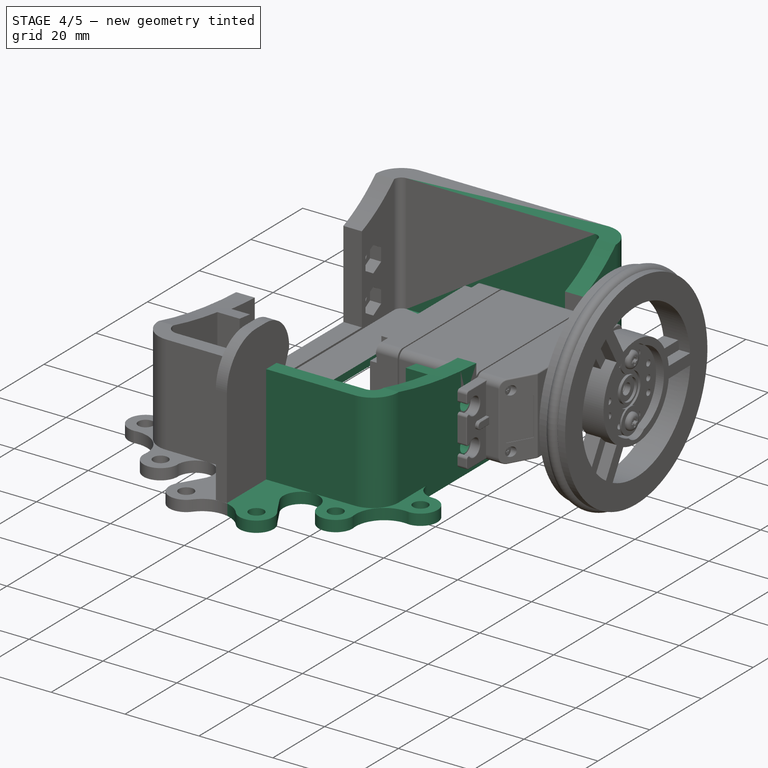
[diagram: stage 4 of 5 — iso view after this stage's code; geometry added in this stage tinted green]
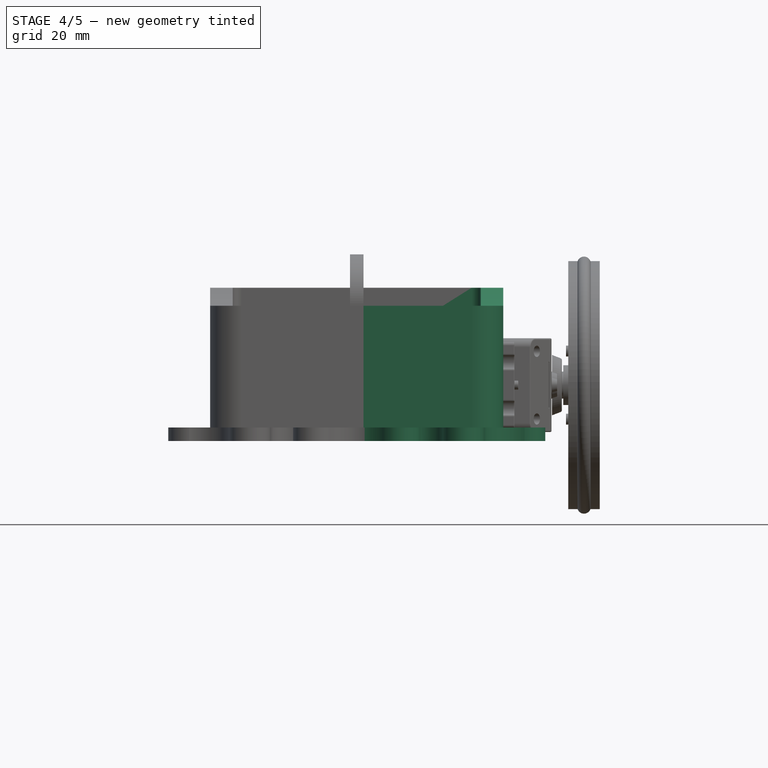
[diagram: stage 4 of 5 — front view after this stage's code; geometry added in this stage tinted green]
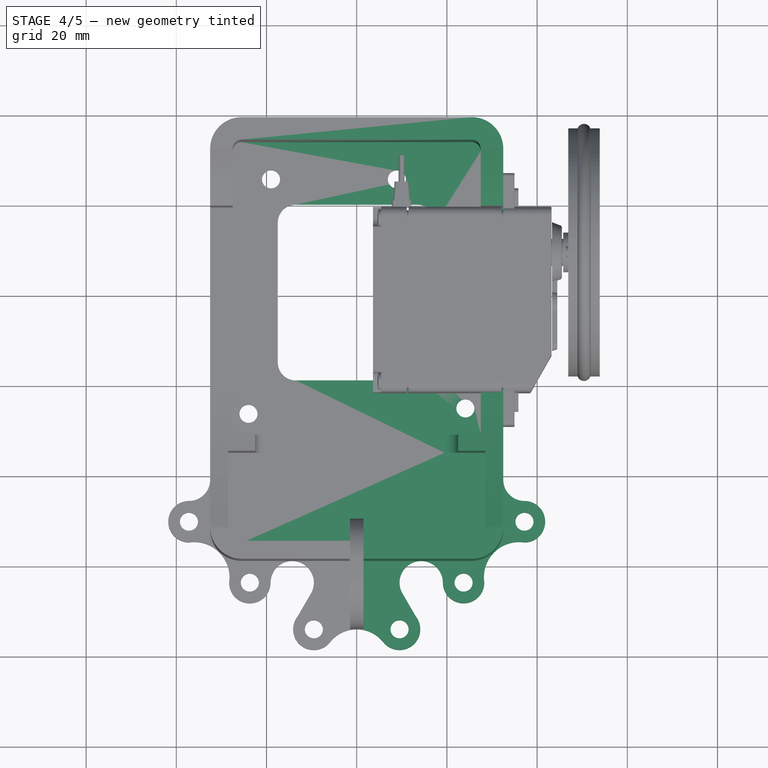
[diagram: stage 4 of 5 — top view after this stage's code; geometry added in this stage tinted green]
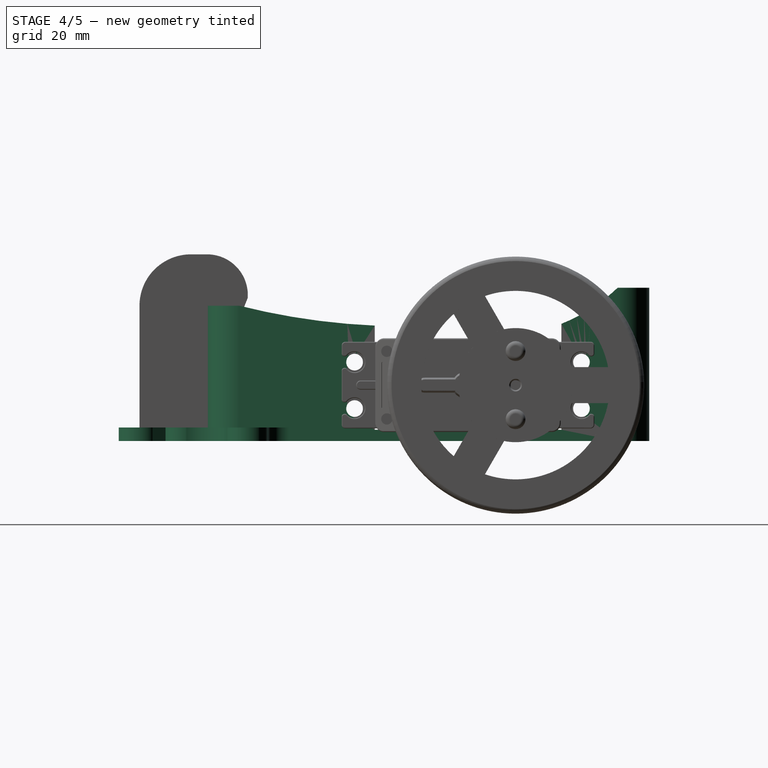
[diagram: stage 4 of 5 — right view after this stage's code; geometry added in this stage tinted green]
FEATURE [Part::MultiFuse] Fusion002  label="chassis-1"
  Shapes = -> [Part__Mirroring,Fillet]
FEATURE [Part::MultiFuse] Fusion003  label="chassis-2"
  Shapes = -> [Fusion002,Pad002]
FEATURE [Sketcher::SketchObject] Sketch008  label="Board-drills-sketch"
  Placement = pos=(0,0,2) rot=(0,0,1;0rad)
  Support = -> Fusion003 [Face24]
  sketch-geometry (5):
    g0: Circle CenterX=-19 CenterY=45.6 CenterZ=0 NormalX=0 NormalY=0 NormalZ=1 Radius=2
    g1: Circle CenterX=-24 CenterY=-6.4 CenterZ=0 NormalX=0 NormalY=0 NormalZ=1 Radius=2
    g2: Circle CenterX=8.9 CenterY=45.6 CenterZ=0 NormalX=0 NormalY=0 NormalZ=1 Radius=2
    g3: Circle CenterX=24.1 CenterY=-5.2 CenterZ=0 NormalX=0 NormalY=0 NormalZ=1 Radius=2
    g4: LineSegment [constr] StartX=-19 StartY=45.6 StartZ=0 EndX=8.9 EndY=45.6 EndZ=0
  constraints (14):
    c: Radius(g0) = 2
    c: Equal(g1,g3)
    c: Equal(g3,g2)
    c: Equal(g2,g0)
    c: Coincident(g0,g4)
    c: Horizontal(g4)
    c: Coincident(g4,g2)
    c: DistanceX(g4) = 27.9
    c: DistanceY(g0,g1) = -52
    c: DistanceX(g1,g0) = 5
    c: DistanceY(g2,g3) = -50.8
    c: DistanceX(g2,g3) = 15.2
    c: DistanceX(g3) = 24.1
    c: DistanceY(g3) = -5.2
FEATURE [PartDesign::Pocket] Pocket004  label="Board-drills"
  Length = 5
  Sketch = -> Sketch008
  Type = 1
FEATURE [Sketcher::SketchObject] Sketch009  label="top-cutout-1-sketch"
  Placement = pos=(0,0,2) rot=(0,0,1;0rad)
  Support = -> Pocket004 [Face25]
  sketch-geometry (8):
    g0: LineSegment StartX=-13.5 StartY=40 StartZ=0 EndX=13.5 EndY=40 EndZ=0
    g1: LineSegment StartX=17.5 StartY=36 StartZ=0 EndX=17.5 EndY=5 EndZ=0
    g2: LineSegment StartX=13.5 StartY=1 StartZ=0 EndX=-13.5 EndY=1 EndZ=0
    g3: LineSegment StartX=-17.5 StartY=5 StartZ=0 EndX=-17.5 EndY=36 EndZ=0
    g4: ArcOfCircle CenterX=-13.5 CenterY=36 CenterZ=0 NormalX=0 NormalY=0 NormalZ=1 Radius=4 StartAngle=1.5708 EndAngle=3.14159
    g5: ArcOfCircle CenterX=13.5 CenterY=36 CenterZ=0 NormalX=0 NormalY=0 NormalZ=1 Radius=4 StartAngle=0 EndAngle=1.5708
    g6: ArcOfCircle CenterX=13.5 CenterY=5 CenterZ=0 NormalX=0 NormalY=0 NormalZ=1 Radius=4 StartAngle=4.71239 EndAngle=6.28319
    g7: ArcOfCircle CenterX=-13.5 CenterY=5 CenterZ=0 NormalX=0 NormalY=0 NormalZ=1 Radius=4 StartAngle=3.14159 EndAngle=4.71239
  constraints (20):
    c: Horizontal(g0)
    c: Horizontal(g2)
    c: Vertical(g1)
    c: Vertical(g3)
    c: Tangent(g0,g4)
    c: Tangent(g3,g4)
    c: Tangent(g0,g5)
    c: Tangent(g1,g5)
    c: Tangent(g1,g6)
    c: Tangent(g2,g6)
    c: Tangent(g2,g7)
    c: Tangent(g3,g7)
    c: Equal(g4,g7)
    c: Equal(g7,g6)
    c: Equal(g6,g5)
    c: DistanceX(g3,g1) = 35
    c: DistanceY(g0,g2) = -39
    c: Radius(g4) = 4
    c: DistanceX(g2) = -13.5
    c: DistanceY(g2) = 1
FEATURE [PartDesign::Pocket] Pocket005  label="top-cutout-1"
  Length = 5
  Sketch = -> Sketch009
  Type = 1
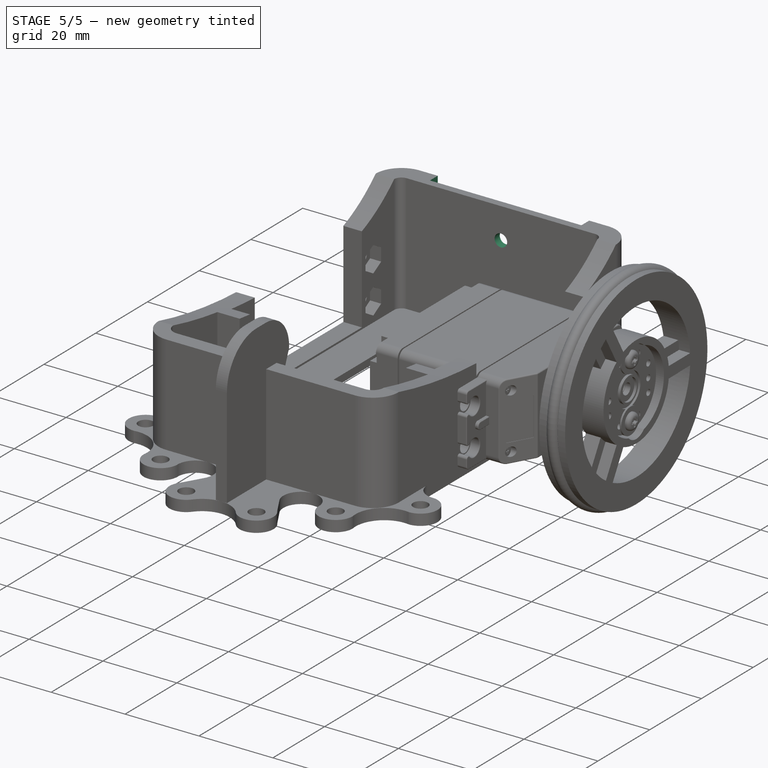
[diagram: stage 5 of 5 — iso view after this stage's code; geometry added in this stage tinted green]
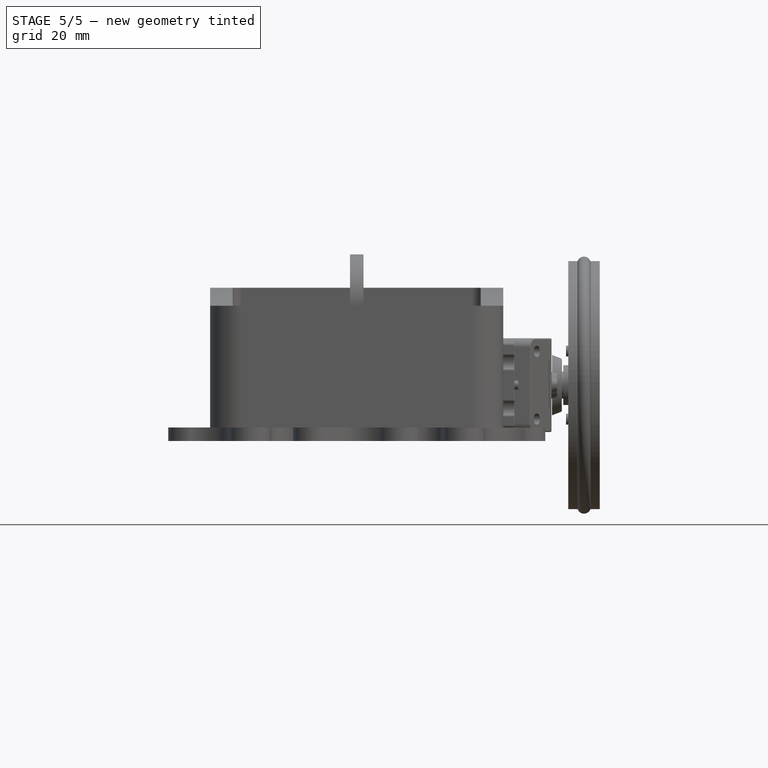
[diagram: stage 5 of 5 — front view after this stage's code; geometry added in this stage tinted green]
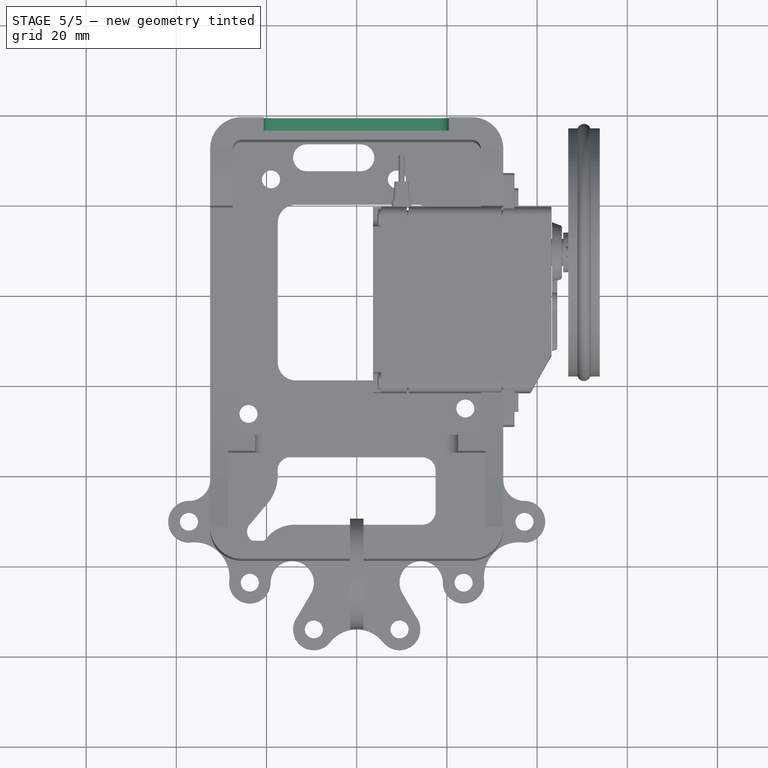
[diagram: stage 5 of 5 — top view after this stage's code; geometry added in this stage tinted green]
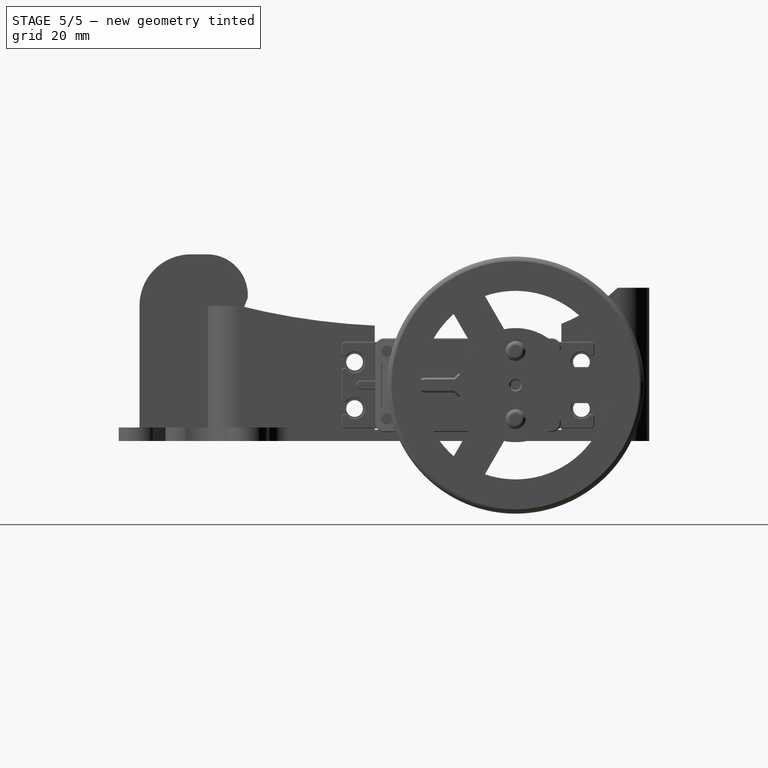
[diagram: stage 5 of 5 — right view after this stage's code; geometry added in this stage tinted green]
FEATURE [Sketcher::SketchObject] Sketch010  label="top-cutout-2-sketch"
  Placement = pos=(0,0,2) rot=(0,0,1;0rad)
  Support = -> Pocket005 [Face25]
  sketch-geometry (4):
    g0: ArcOfCircle CenterX=-11.1 CenterY=50.4 CenterZ=0 NormalX=0 NormalY=0 NormalZ=1 Radius=3 StartAngle=1.5708 EndAngle=4.71239
    g1: ArcOfCircle CenterX=0.900001 CenterY=50.4 CenterZ=0 NormalX=0 NormalY=0 NormalZ=1 Radius=3 StartAngle=4.71239 EndAngle=7.85398
    g2: LineSegment StartX=-11.1 StartY=47.4 StartZ=0 EndX=0.9 EndY=47.4 EndZ=0
    g3: LineSegment StartX=-11.1 StartY=53.4 StartZ=0 EndX=0.9 EndY=53.4 EndZ=0
  constraints (14):
    c: Tangent(g0,g2)
    c: Tangent(g0,g3)
    c: Tangent(g1,g2)
    c: Tangent(g1,g3)
    c: Coincident(g0,g3)
    c: Coincident(g0,g2)
    c: Coincident(g2,g1)
    c: Coincident(g3,g1)
    c: Horizontal(g2)
    c: Equal(g0,g1)
    c: DistanceX(g0) = -11.1
    c: DistanceY(g0) = 47.4
    c: Radius(g0) = 3
    c: DistanceX(g3) = 12
FEATURE [PartDesign::Pocket] Pocket006  label="top-cutout-2"
  Length = 5
  Sketch = -> Sketch010
  Type = 1
FEATURE [Sketcher::SketchObject] Sketch011  label="top-cutout-3-sketch"
  Placement = pos=(0,0,2) rot=(0,0,1;0rad)
  Support = -> Pocket006 [Face25]
  sketch-geometry (11):
    g0: LineSegment StartX=-15.3 StartY=-16 StartZ=0 EndX=14.5 EndY=-16 EndZ=0
    g1: LineSegment StartX=17.5 StartY=-19 StartZ=0 EndX=17.5 EndY=-28 EndZ=0
    g2: LineSegment StartX=14.5 StartY=-31 StartZ=0 EndX=-13.3 EndY=-31 EndZ=0
    g3: ArcOfCircle CenterX=14.5 CenterY=-19 CenterZ=0 NormalX=0 NormalY=0 NormalZ=1 Radius=3 StartAngle=0 EndAngle=1.5708
    g4: ArcOfCircle CenterX=14.5 CenterY=-28 CenterZ=0 NormalX=0 NormalY=0 NormalZ=1 Radius=3 StartAngle=4.71239 EndAngle=6.28319
    g5: LineSegment [constr] StartX=14.5 StartY=-16 StartZ=0 EndX=14.5 EndY=-31 EndZ=0
    g6: LineSegment StartX=-23.8 StartY=-31 StartZ=0 EndX=-20 EndY=-26.5 EndZ=0
    g7: ArcOfCircle CenterX=-14.5415 CenterY=-18.9025 CenterZ=0 NormalX=0 NormalY=0 NormalZ=1 Radius=3 StartAngle=1.82639 EndAngle=3.30818
    g8: ArcOfCircle CenterX=-13.7451 CenterY=-38.9876 CenterZ=0 NormalX=0 NormalY=0 NormalZ=1 Radius=8 StartAngle=1.51513 EndAngle=2.46844
    g9: ArcOfCircle CenterX=-21.8927 CenterY=-32.4908 CenterZ=0 NormalX=0 NormalY=0 NormalZ=1 Radius=2.42077 StartAngle=2.47816 EndAngle=5.61004
    g10: ArcOfCircle CenterX=-27.4888 CenterY=-19.873 CenterZ=0 NormalX=0 NormalY=0 NormalZ=1 Radius=10 StartAngle=5.55876 EndAngle=6.3305
  constraints (35):
    c: Horizontal(g0)
    c: Horizontal(g2)
    c: Vertical(g1)
    c: DistanceX(g0) = -15.3
    c: DistanceY(g0) = -16
    c: Tangent(g0,g3)
    c: Tangent(g1,g3)
    c: Tangent(g1,g4)
    c: Tangent(g2,g4)
    c: Equal(g4,g3)
    c: Vertical(g5)
    c: Coincident(g5,g0)
    c: Coincident(g5,g2)
    c: Radius(g3) = 3
    c: DistanceX(g0) = 29.8
    c: Coincident(g7,g0)
    c: Radius(g7) = 3
    c: DistanceY(g5) = -15
    c: DistanceX(g2) = -27.8
    c: Coincident(g8,g2)
    c: Radius(g8) = 8
    c: DistanceX(g7) = -17.5
    c: DistanceY(g7) = -19.4
    c: DistanceX(g8,g2) = 6.7
    c: DistanceY(g2,g8) = -3
    c: DistanceX(g8,g6) = -3.8
    c: DistanceY(g8,g6) = 3
    c: DistanceX(g6,g6) = 3.8
    c: DistanceY(g6,g6) = 4.5
    c: Coincident(g9,g8)
    c: Coincident(g9,g6)
    c: Tangent(g9,g8)
    c: Coincident(g10,g7)
    c: Coincident(g10,g6)
    c: Radius(g10) = 10
FEATURE [PartDesign::Pocket] Pocket007  label="top-cutout-3"
  Length = 5
  Sketch = -> Sketch011
  Type = 1
FEATURE [Sketcher::SketchObject] Sketch012  label="frontal-cutout-sketch"
  Placement = pos=(0,58.843,0) rot=(0,0.707107,0.707107;3.14159rad)
  Support = -> Pocket007 [Face91]
  sketch-geometry (6):
    g0: LineSegment StartX=-20.4 StartY=34 StartZ=0 EndX=20.6 EndY=34 EndZ=0
    g1: LineSegment StartX=20.6 StartY=34 StartZ=0 EndX=20.6 EndY=22 EndZ=0
    g2: LineSegment StartX=18.6 StartY=20 StartZ=0 EndX=-18.4 EndY=20 EndZ=0
    g3: LineSegment StartX=-20.4 StartY=22 StartZ=0 EndX=-20.4 EndY=34 EndZ=0
    g4: ArcOfCircle CenterX=-18.4 CenterY=22 CenterZ=0 NormalX=0 NormalY=0 NormalZ=1 Radius=2 StartAngle=3.14159 EndAngle=4.71239
    g5: ArcOfCircle CenterX=18.6 CenterY=22 CenterZ=0 NormalX=0 NormalY=0 NormalZ=1 Radius=2 StartAngle=4.71239 EndAngle=6.28319
  constraints (15):
    c: Coincident(g0,g1)
    c: Coincident(g3,g0)
    c: Horizontal(g0)
    c: Horizontal(g2)
    c: Vertical(g1)
    c: Vertical(g3)
    c: DistanceX(g0,g0) = 41
    c: Tangent(g2,g4)
    c: Tangent(g3,g4)
    c: Tangent(g1,g5)
    c: Tangent(g2,g5)
    c: Equal(g4,g5)
    c: Radius(g4) = 2
    c: DistanceY(g2,g0) = 14
    c: DistanceX(g-1,g0) = -20.4
FEATURE [PartDesign::Pocket] Pocket008  label="frontal-cutout"
  Length = 3
  Sketch = -> Sketch012
  Type = 0
FEATURE [Sketcher::SketchObject] Sketch013  label="frontal-drill-sketch"
  Placement = pos=(0,55.843,0) rot=(0,0.707107,0.707107;3.14159rad)
  Support = -> Pocket008 [Face166]
  sketch-geometry (1):
    g0: Circle CenterX=0 CenterY=25.6 CenterZ=0 NormalX=0 NormalY=0 NormalZ=1 Radius=1.7
  constraints (3):
    c: PointOnObject(g0,g-2)
    c: Radius(g0) = 1.7
    c: DistanceY(g-1,g0) = 25.6
FEATURE [PartDesign::Pocket] Pocket009  label="frontal-drill"
  Length = 4
  Sketch = -> Sketch013
  Type = 0
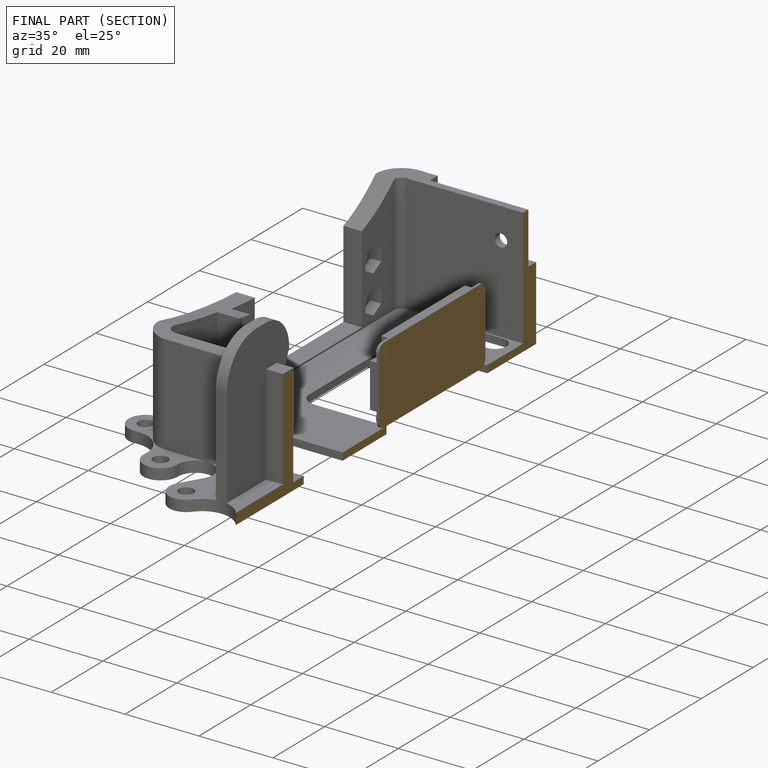
[diagram: finished part — half-section view (interior)]
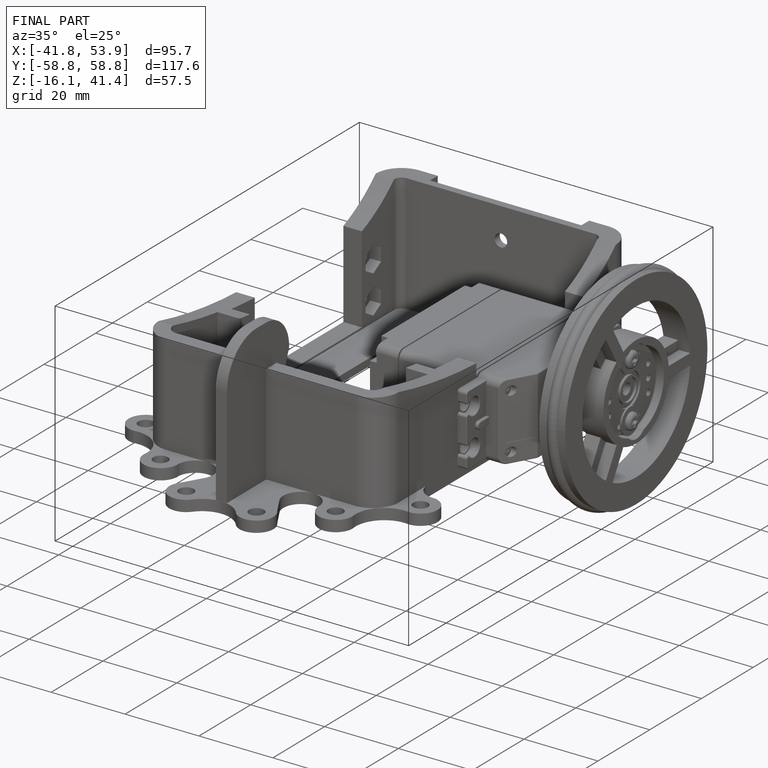
[diagram: finished part — iso view with bounding-box wireframe]
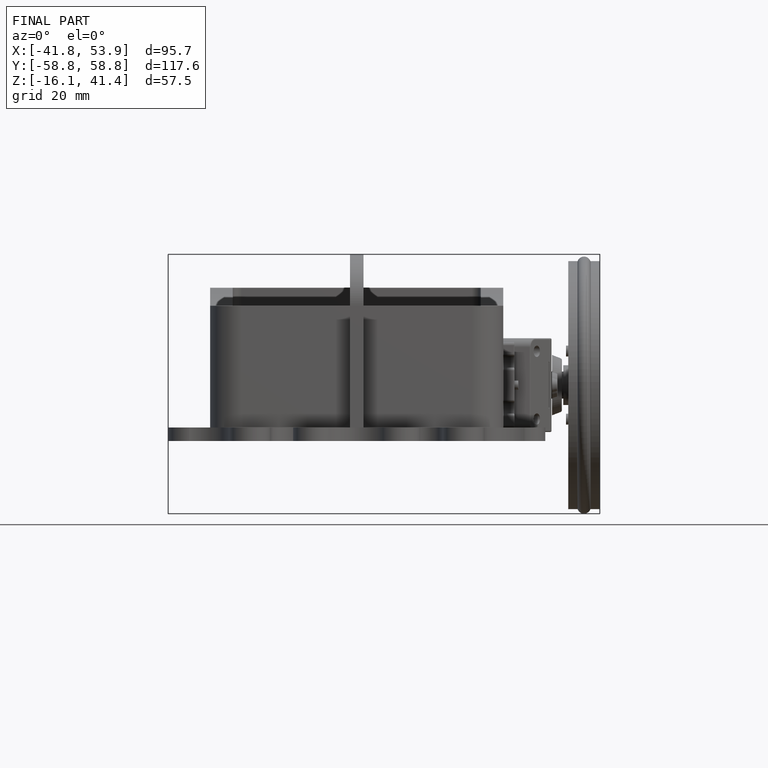
[diagram: finished part — front view with bounding-box wireframe]
